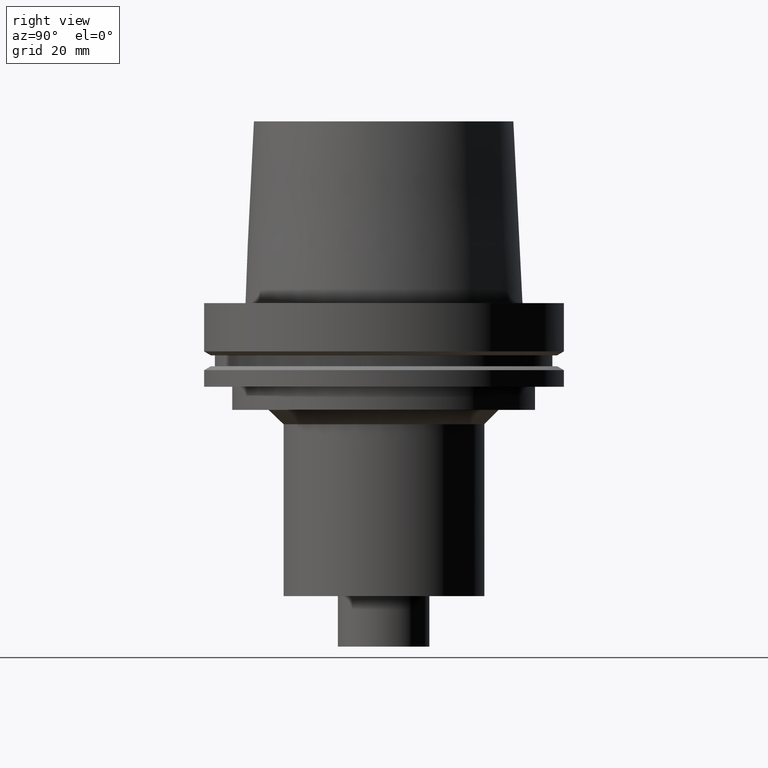
[diagram: clean part render]
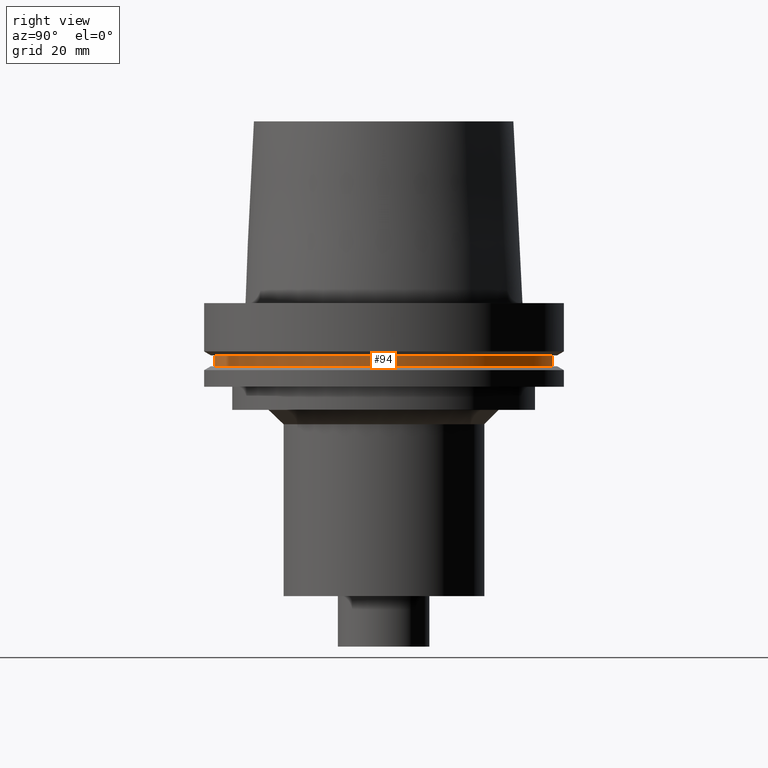
[diagram: same view with one face highlighted and labeled with its STEP entity id]
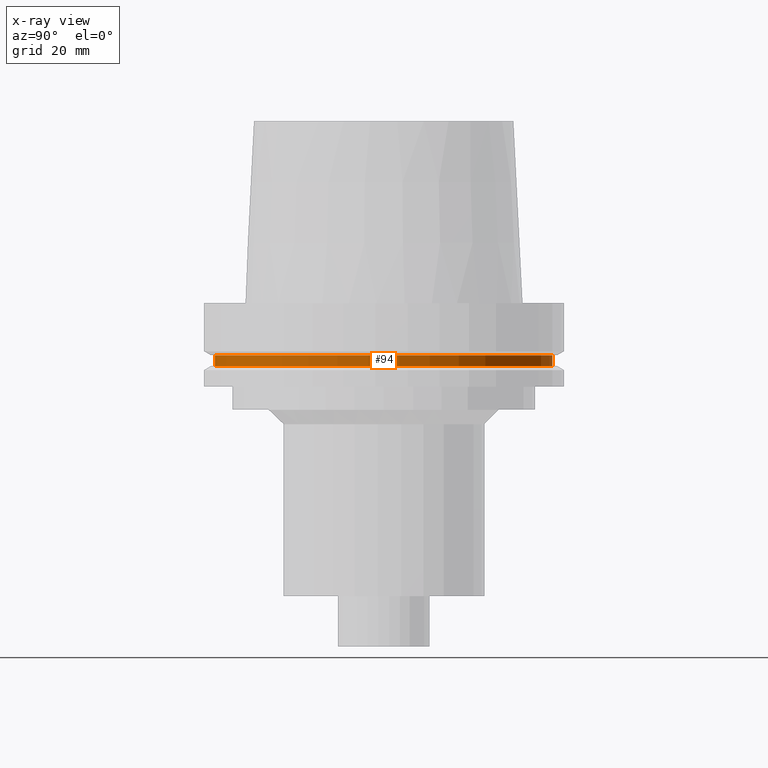
[diagram: x-ray of the same camera — body ghosted, the highlighted face saturated]
A machine part, right view. The second image highlights one B-rep face of the part: STEP entity #94.
The next image is the same camera in x-ray: the body ghosted, the highlighted face saturated — about 0% of this face is hidden behind the body in this view.
In plain terms, the highlighted cylindrical surface (bore or boss wall) has radius 58.5 mm, axis along (0, 0, -1).
Its self-contained STEP definition (entity closure, byte-faithful):
#69=EDGE_CURVE('Unnamed[1]',#180,#180,#181,.T.);
#94=ADVANCED_FACE('Unnamed[1]',(#219,#220),#221,.T.);
#98=EDGE_CURVE('Unnamed[1]',#226,#226,#227,.T.);
#180=VERTEX_POINT('',#331);
#181=CIRCLE('',#332,58.4999999999998);
#219=FACE_BOUND('',#380,.T.);
#220=FACE_BOUND('',#381,.T.);
#221=CYLINDRICAL_SURFACE('',#382,58.4999999999999);
#226=VERTEX_POINT('',#389);
#227=CIRCLE('',#390,58.5);
#331=CARTESIAN_POINT('',(1.33945743656732E-015,58.4999999999998,-21.8749999999984));
#332=AXIS2_PLACEMENT_3D('',#505,#506,#507);
#380=EDGE_LOOP('',(#548));
#381=EDGE_LOOP('',(#549));
#382=AXIS2_PLACEMENT_3D('',#550,#551,#552);
#389=CARTESIAN_POINT('',(1.10983616172739E-015,58.5,-18.1250000000017));
#390=AXIS2_PLACEMENT_3D('',#556,#557,#558);
#505=CARTESIAN_POINT('',(1.33945743656732E-015,2.67891487313464E-015,-21.8749999999984));
#506=DIRECTION('',(6.12323399573677E-017,1.22464679914735E-016,-1.0));
#507=DIRECTION('',(-1.23259516440783E-032,1.0,1.22464679914735E-016));
#548=ORIENTED_EDGE('',*,*,#69,.F.);
#549=ORIENTED_EDGE('',*,*,#98,.T.);
#550=CARTESIAN_POINT('',(1.22464679914736E-015,2.44929359829471E-015,-20.0));
#551=DIRECTION('',(6.12323399573677E-017,1.22464679914735E-016,-1.0));
#552=DIRECTION('',(-1.23259516440783E-032,1.0,1.22464679914735E-016));
#556=CARTESIAN_POINT('',(1.10983616172739E-015,2.21967232345478E-015,-18.1250000000017));
#557=DIRECTION('',(6.12323399573677E-017,1.22464679914735E-016,-1.0));
#558=DIRECTION('',(-1.23259516440783E-032,1.0,1.22464679914735E-016));